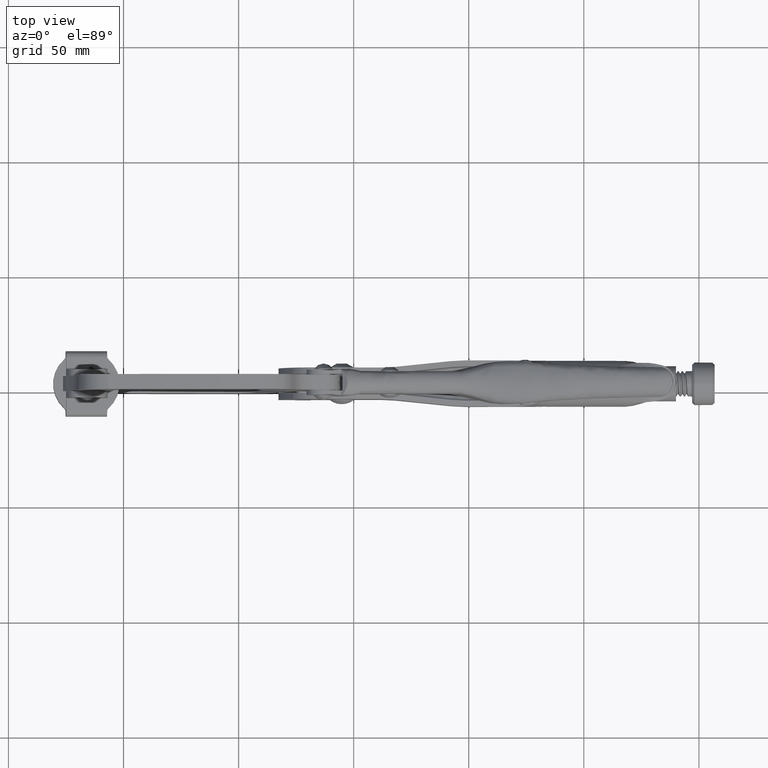
[diagram: clean part render]
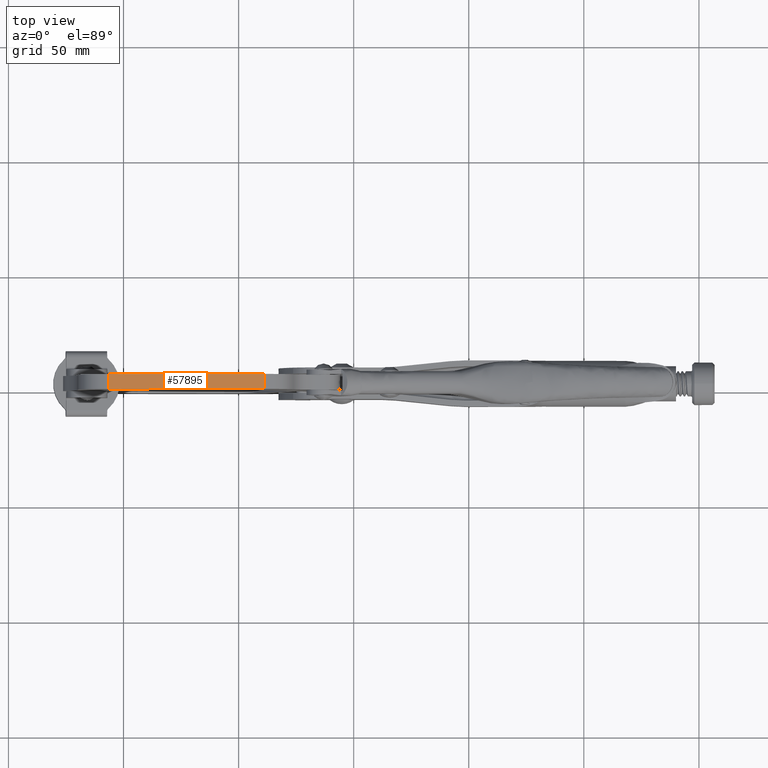
[diagram: same view with one face highlighted and labeled with its STEP entity id]
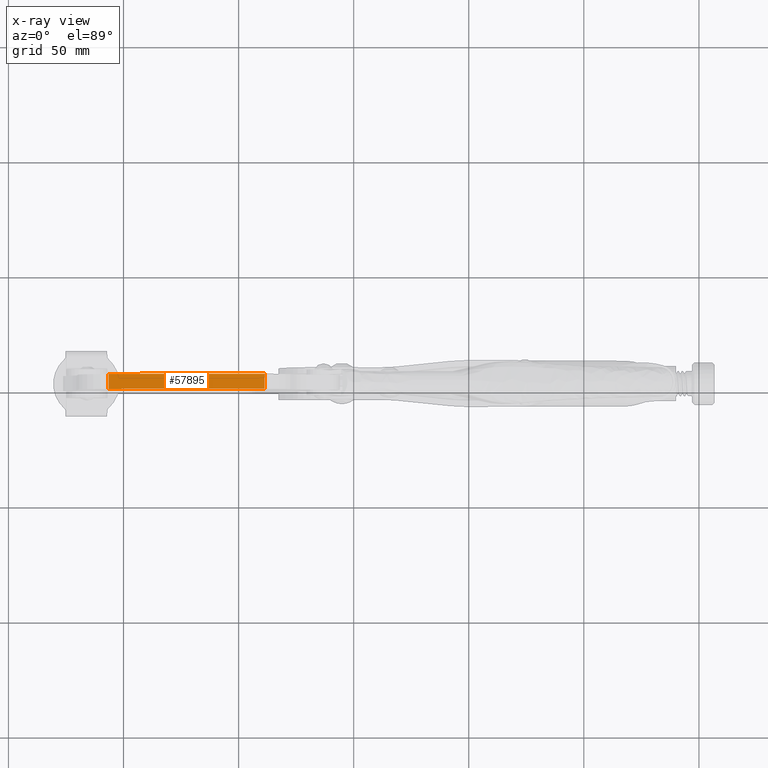
[diagram: x-ray of the same camera — body ghosted, the highlighted face saturated]
A machine part, top view. The second image highlights one B-rep face of the part: STEP entity #57895.
The next image is the same camera in x-ray: the body ghosted, the highlighted face saturated — about 0% of this face is hidden behind the body in this view.
In plain terms, the highlighted cylindrical surface (partial cylindrical patch) has radius 253.2 mm, axis along (0, -1, 0).
Its self-contained STEP definition (entity closure, byte-faithful):
#286 = LINE ( 'NONE', #25303, #26669 ) ;
#2555 = DIRECTION ( 'NONE',  ( 1.359620453085213800E-016, -1.000000000000000000, 3.925780763845891800E-018 ) ) ;
#9955 = ORIENTED_EDGE ( 'NONE', *, *, #49965, .T. ) ;
#10059 = DIRECTION ( 'NONE',  ( -1.359620453085213800E-016, 1.000000000000000000, -3.925780763845891800E-018 ) ) ;
#12134 = DIRECTION ( 'NONE',  ( -0.9995460851566985200, -1.370239712461933100E-016, -0.03012679285815399200 ) ) ;
#14090 = DIRECTION ( 'NONE',  ( 1.359620453085213800E-016, -1.000000000000000000, 3.925780763845891800E-018 ) ) ;
#14745 = AXIS2_PLACEMENT_3D ( 'NONE', #24091, #58555, #29069 ) ;
#14851 = CARTESIAN_POINT ( 'NONE',  ( -156.4866653079111200, 5.901795487264931400, 59.56027646639520900 ) ) ;
#16372 = ORIENTED_EDGE ( 'NONE', *, *, #31380, .T. ) ;
#19067 = LINE ( 'NONE', #14851, #30609 ) ;
#20623 = CARTESIAN_POINT ( 'NONE',  ( -156.4866653079111200, -0.5982045127350699200, 59.56027646639522300 ) ) ;
#20923 = EDGE_LOOP ( 'NONE', ( #9955, #21930, #43536, #16372 ) ) ;
#21930 = ORIENTED_EDGE ( 'NONE', *, *, #28080, .F. ) ;
#22066 = AXIS2_PLACEMENT_3D ( 'NONE', #46666, #2555, #12134 ) ;
#24091 = CARTESIAN_POINT ( 'NONE',  ( -112.3619496183139100, 5.901795487264935900, -189.7653128045662900 ) ) ;
#24770 = EDGE_CURVE ( 'NONE', #45956, #26070, #60129, .T. ) ;
#25303 = CARTESIAN_POINT ( 'NONE',  ( -88.74312514025710600, 5.901795487264939400, 62.33068305866580500 ) ) ;
#26070 = VERTEX_POINT ( 'NONE', #20623 ) ;
#26148 = CARTESIAN_POINT ( 'NONE',  ( -156.4866653079111200, 5.901795487264931400, 59.56027646639522300 ) ) ;
#26585 = CARTESIAN_POINT ( 'NONE',  ( -88.74312514025712100, -0.5982045127350608100, 62.33068305866580500 ) ) ;
#26669 = VECTOR ( 'NONE', #49649, 1000.000000000000000 ) ;
#27923 = VERTEX_POINT ( 'NONE', #44173 ) ;
#28080 = EDGE_CURVE ( 'NONE', #26070, #41193, #19067, .T. ) ;
#29069 = DIRECTION ( 'NONE',  ( -0.9995460851566985200, -1.370239712461933100E-016, -0.03012679285815399200 ) ) ;
#30609 = VECTOR ( 'NONE', #10059, 1000.000000000000000 ) ;
#31380 = EDGE_CURVE ( 'NONE', #45956, #27923, #286, .T. ) ;
#35402 = CIRCLE ( 'NONE', #14745, 253.1999999999999600 ) ;
#41193 = VERTEX_POINT ( 'NONE', #26148 ) ;
#43536 = ORIENTED_EDGE ( 'NONE', *, *, #24770, .F. ) ;
#43632 = CARTESIAN_POINT ( 'NONE',  ( -112.3619496183139100, -0.5982045127350651400, -189.7653128045662900 ) ) ;
#44173 = CARTESIAN_POINT ( 'NONE',  ( -88.74312514025713500, 5.901795487264939400, 62.33068305866581900 ) ) ;
#45687 = AXIS2_PLACEMENT_3D ( 'NONE', #43632, #14090, #48587 ) ;
#45956 = VERTEX_POINT ( 'NONE', #26585 ) ;
#46666 = CARTESIAN_POINT ( 'NONE',  ( -112.3619496183139100, 5.901795487264935900, -189.7653128045662900 ) ) ;
#48587 = DIRECTION ( 'NONE',  ( -0.9995460851566985200, -1.361675714259046100E-016, -0.03012679285815399200 ) ) ;
#49649 = DIRECTION ( 'NONE',  ( -1.359620453085213800E-016, 1.000000000000000000, -3.925780763845891800E-018 ) ) ;
#49965 = EDGE_CURVE ( 'NONE', #27923, #41193, #35402, .T. ) ;
#55387 = CYLINDRICAL_SURFACE ( 'NONE', #22066, 253.1999999999999600 ) ;
#56964 = FACE_OUTER_BOUND ( 'NONE', #20923, .T. ) ;
#57895 = ADVANCED_FACE ( 'NONE', ( #56964 ), #55387, .T. ) ;
#58555 = DIRECTION ( 'NONE',  ( 1.359620453085213800E-016, -1.000000000000000000, 3.925780763845891800E-018 ) ) ;
#60129 = CIRCLE ( 'NONE', #45687, 253.1999999999999600 ) ;